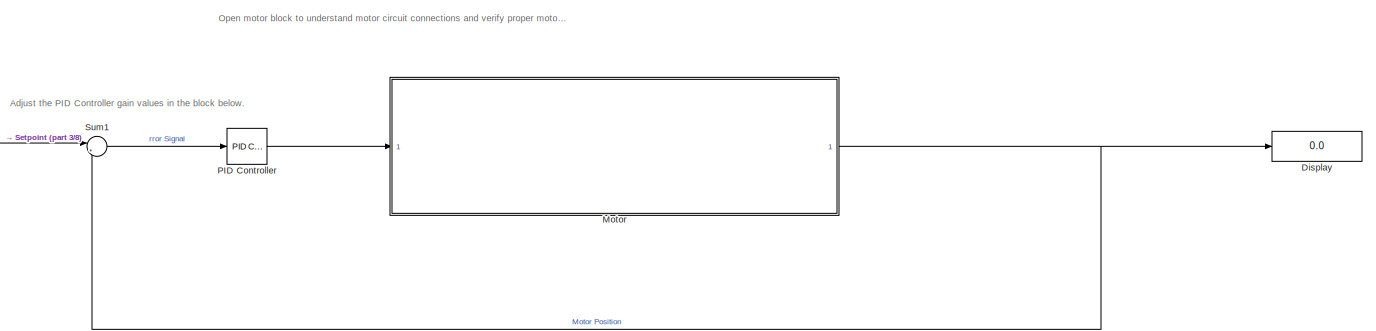
[diagram: root canvas - part 1/8, full width, top band]
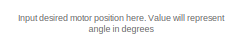
[diagram: root canvas - part 2/8, top left region]
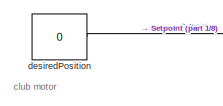
[diagram: root canvas - part 3/8, top left region]
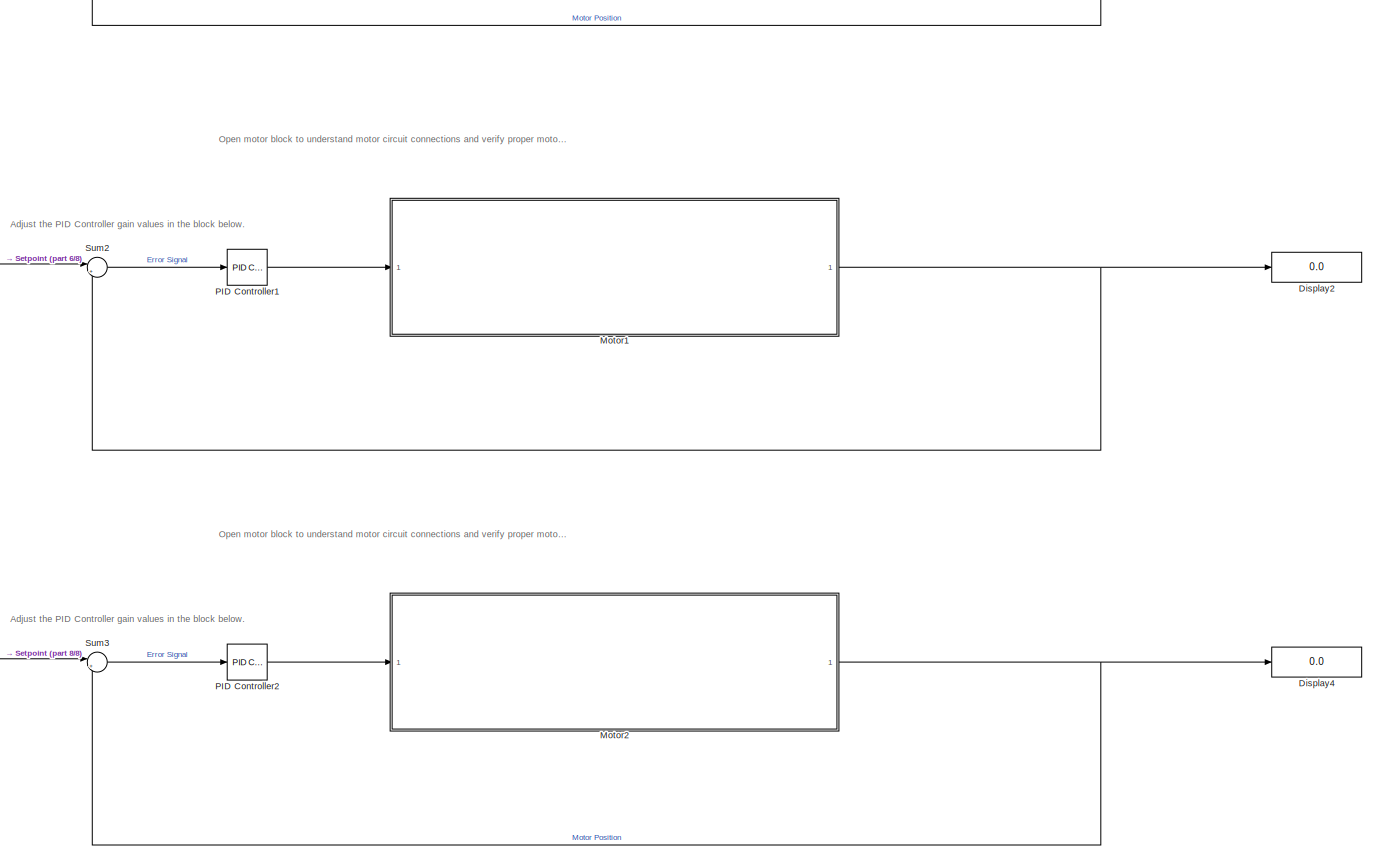
[diagram: root canvas - part 4/8, full width, middle band]
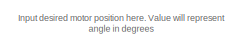
[diagram: root canvas - part 5/8, middle left region]
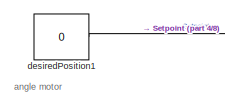
[diagram: root canvas - part 6/8, middle left region]
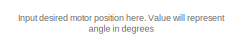
[diagram: root canvas - part 7/8, bottom left region]
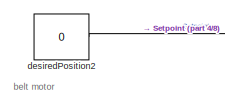
[diagram: root canvas - part 8/8, bottom left region]
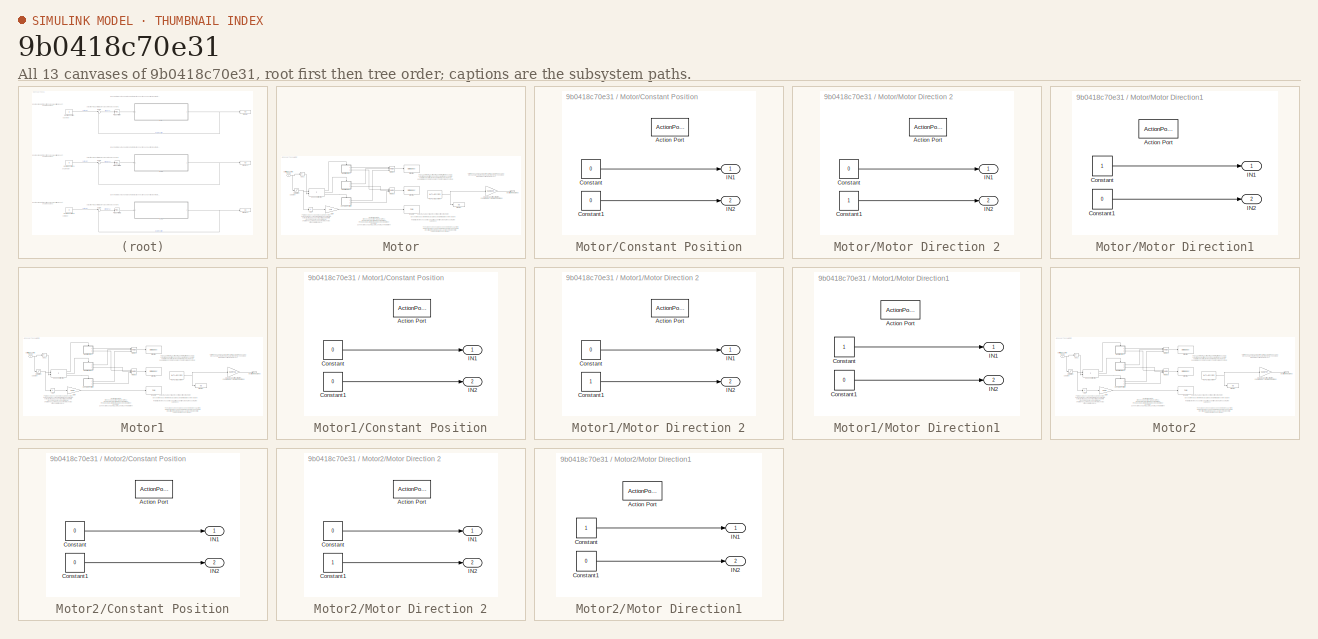
[diagram: thumbnail index - all 13 canvases of the model, root first then tree order]
MODEL slx_9b0418c70e31
KIND model
CONFIG AbsTol = auto
CONFIG EnableMultiTasking = on
CONFIG FixedStep = 0.001
CONFIG MaxStep = auto
CONFIG MinStep = auto
CONFIG RelTol = 1e-3
CONFIG SampleTimeConstraint = Unconstrained
CONFIG SolverName = FixedStepAuto
CONFIG StartTime = 0.0
CONFIG StopTime = 10000
WORKSPACE source: mxarray member
WORKSPACE Error = 0
WORKSPACE motorPosition: Simulink.Parameter (value not decoded)
BLOCK [Display] Display
  Decimation = 1
  Ports = [1]
BLOCK [Display] Display2
  Decimation = 1
  Ports = [1]
BLOCK [Display] Display4
  Decimation = 1
  Ports = [1]
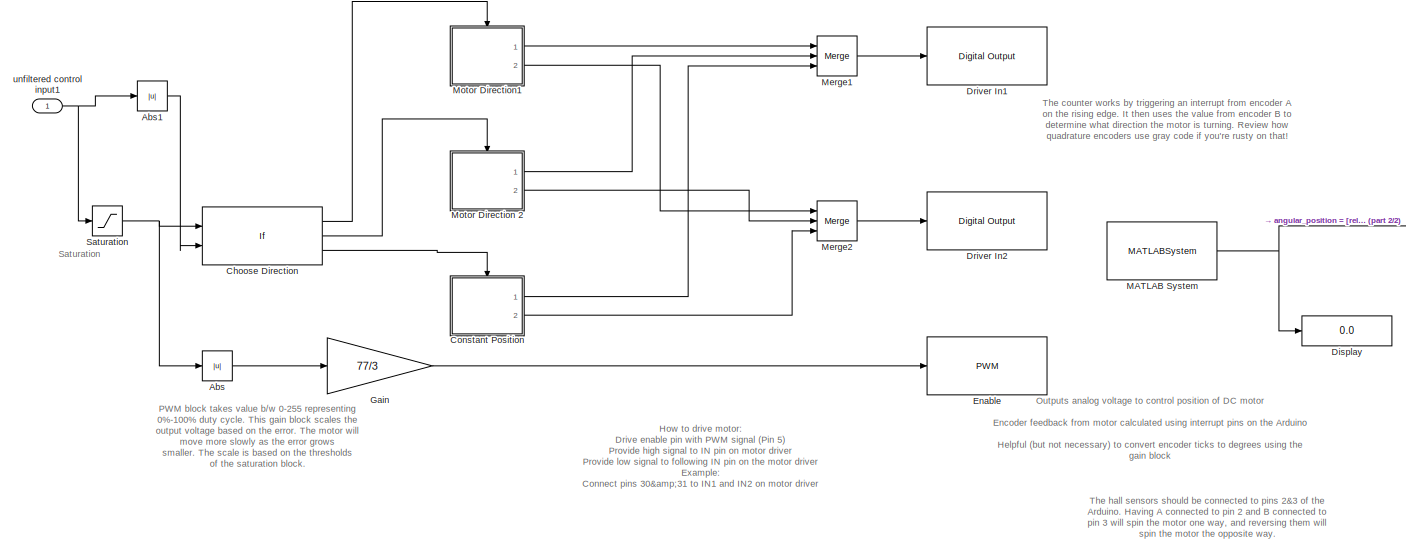
[diagram: Motor - part 1/2, most of the canvas]
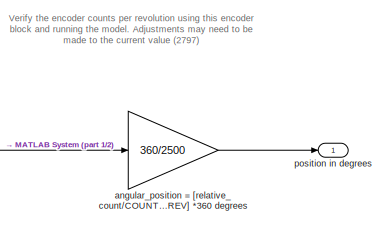
[diagram: Motor - part 2/2, middle right region]
BLOCK [SubSystem] Motor
  Ports = [1, 1]
  RequestExecContextInheritance = off
BLOCK [Abs] Motor/Abs
  SaturateOnIntegerOverflow = off
BLOCK [Abs] Motor/Abs1
  SaturateOnIntegerOverflow = off
BLOCK [If] Motor/Choose Direction
  ElseIfExpressions = u1 < 0 & u2 > 3
  IfExpression = u1 > 0 & u2 > 3
  NumInputs = 2
  Ports = [2, 3]
BLOCK [SubSystem] Motor/Constant Position
  Ports = [0, 2, 0, 0, 0, 0, 0, 1]
  RequestExecContextInheritance = off
  TreatAsAtomicUnit = on
BLOCK [ActionPort] Motor/Constant Position/Action Port
  ActionPortLabel = else
BLOCK [Constant] Motor/Constant Position/Constant
  Value = 0
BLOCK [Constant] Motor/Constant Position/Constant1
  Value = 0
BLOCK [Outport] Motor/Constant Position/IN1
BLOCK [Outport] Motor/Constant Position/IN2
  Port = 2
BLOCK [Display] Motor/Display
  Decimation = 1
  Ports = [1]
BLOCK [Reference] Motor/Driver In1  REF=arduinolib/Digital Output
  Ports = [1]
  SourceBlock = arduinolib/Digital Output
  SourceProductBaseCode = ARDUINO
  SourceType = Arduino Digital Output
BLOCK [Reference] Motor/Driver In2  REF=arduinolib/Digital Output
  Ports = [1]
  SourceBlock = arduinolib/Digital Output
  SourceProductBaseCode = ARDUINO
  SourceType = Arduino Digital Output
BLOCK [Reference] Motor/Enable  REF=arduinolib/PWM
  Ports = [1]
  SourceBlock = arduinolib/PWM
  SourceProductBaseCode = ARDUINO
  SourceType = Arduino PWM
BLOCK [Gain] Motor/Gain
  Gain = 77/3
BLOCK [MATLABSystem] Motor/MATLAB System
  Encoder = 0
  MaskDisplay = disp('Encoder');\nport_label('output',1,'y');
  MaskType = Encoder_arduino
  PinA = 2
  PinB = 3
  Ports = [0, 1]
  SampleTime = 0.001
  System = Encoder_arduino
BLOCK [Merge] Motor/Merge1
  Inputs = 3
  Ports = [3, 1]
BLOCK [Merge] Motor/Merge2
  Inputs = 3
  Ports = [3, 1]
BLOCK [SubSystem] Motor/Motor Direction 2
  Ports = [0, 2, 0, 0, 0, 0, 0, 1]
  RequestExecContextInheritance = off
  TreatAsAtomicUnit = on
BLOCK [ActionPort] Motor/Motor Direction 2/Action Port
  ActionPortLabel = elseif(u1 < 0 & u2 > 3)
BLOCK [Constant] Motor/Motor Direction 2/Constant
  Value = 0
BLOCK [Constant] Motor/Motor Direction 2/Constant1
BLOCK [Outport] Motor/Motor Direction 2/IN1
BLOCK [Outport] Motor/Motor Direction 2/IN2
  Port = 2
BLOCK [SubSystem] Motor/Motor Direction1
  Ports = [0, 2, 0, 0, 0, 0, 0, 1]
  RequestExecContextInheritance = off
  TreatAsAtomicUnit = on
BLOCK [ActionPort] Motor/Motor Direction1/Action Port
  ActionPortLabel = if(u1 > 0 & u2 > 3)
BLOCK [Constant] Motor/Motor Direction1/Constant
BLOCK [Constant] Motor/Motor Direction1/Constant1
  Value = 0
BLOCK [Outport] Motor/Motor Direction1/IN1
BLOCK [Outport] Motor/Motor Direction1/IN2
  Port = 2
BLOCK [Saturate] Motor/Saturation
  LowerLimit = -5
  UpperLimit = 5
BLOCK [Gain] Motor/angular_position = [relative_count//COUNTS_PER_REV] *360 degrees
  Gain = 360/2500
BLOCK [Outport] Motor/position in degrees
  VectorParamsAs1DForOutWhenUnconnected = off
BLOCK [Inport] Motor/unfiltered control input1
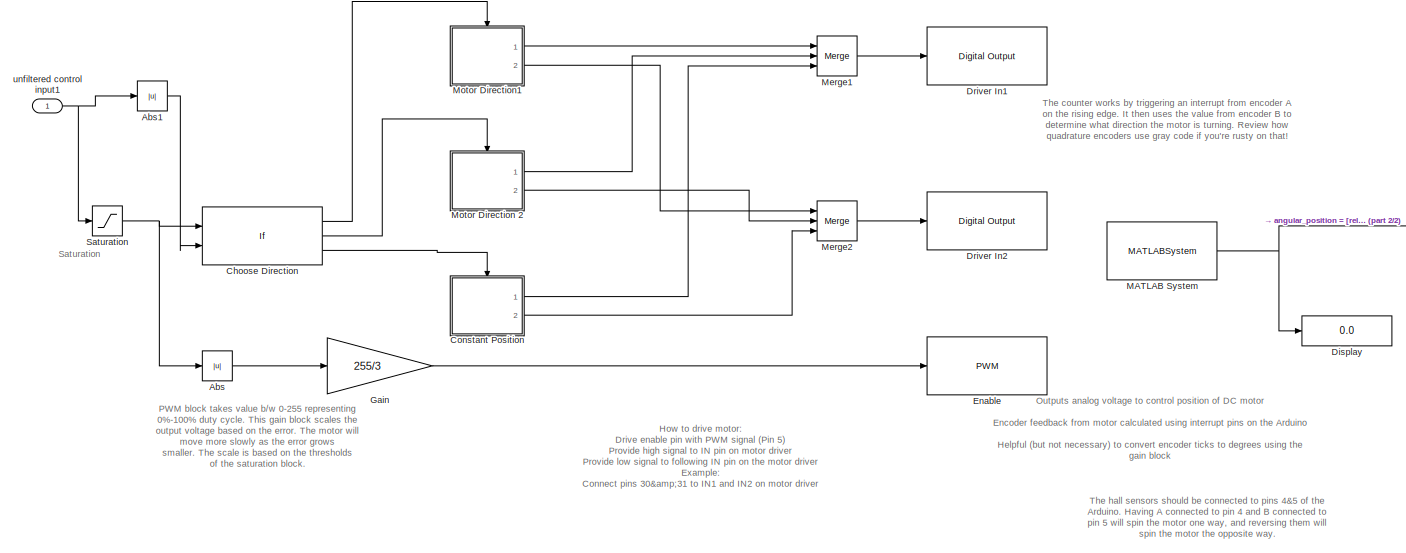
[diagram: Motor1 - part 1/2, most of the canvas]
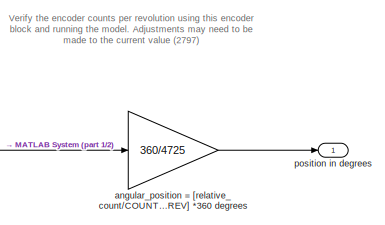
[diagram: Motor1 - part 2/2, middle right region]
BLOCK [SubSystem] Motor1
  Ports = [1, 1]
  RequestExecContextInheritance = off
BLOCK [Abs] Motor1/Abs
  SaturateOnIntegerOverflow = off
BLOCK [Abs] Motor1/Abs1
  SaturateOnIntegerOverflow = off
BLOCK [If] Motor1/Choose Direction
  ElseIfExpressions = u1 < 0 & u2 > 3
  IfExpression = u1 > 0 & u2 > 3
  NumInputs = 2
  Ports = [2, 3]
BLOCK [SubSystem] Motor1/Constant Position
  Ports = [0, 2, 0, 0, 0, 0, 0, 1]
  RequestExecContextInheritance = off
  TreatAsAtomicUnit = on
BLOCK [ActionPort] Motor1/Constant Position/Action Port
  ActionPortLabel = else
BLOCK [Constant] Motor1/Constant Position/Constant
  Value = 0
BLOCK [Constant] Motor1/Constant Position/Constant1
  Value = 0
BLOCK [Outport] Motor1/Constant Position/IN1
BLOCK [Outport] Motor1/Constant Position/IN2
  Port = 2
BLOCK [Display] Motor1/Display
  Decimation = 1
  Ports = [1]
BLOCK [Reference] Motor1/Driver In1  REF=arduinolib/Digital Output
  Ports = [1]
  SourceBlock = arduinolib/Digital Output
  SourceProductBaseCode = ARDUINO
  SourceType = Arduino Digital Output
BLOCK [Reference] Motor1/Driver In2  REF=arduinolib/Digital Output
  Ports = [1]
  SourceBlock = arduinolib/Digital Output
  SourceProductBaseCode = ARDUINO
  SourceType = Arduino Digital Output
BLOCK [Reference] Motor1/Enable  REF=arduinolib/PWM
  Ports = [1]
  SourceBlock = arduinolib/PWM
  SourceProductBaseCode = ARDUINO
  SourceType = Arduino PWM
BLOCK [Gain] Motor1/Gain
  Gain = 255/3
BLOCK [MATLABSystem] Motor1/MATLAB System
  Encoder = 1
  MaskDisplay = disp('Encoder');\nport_label('output',1,'y');
  MaskType = Encoder_arduino
  PinA = 18
  PinB = 19
  Ports = [0, 1]
  SampleTime = 0.001
  System = Encoder_arduino
BLOCK [Merge] Motor1/Merge1
  Inputs = 3
  Ports = [3, 1]
BLOCK [Merge] Motor1/Merge2
  Inputs = 3
  Ports = [3, 1]
BLOCK [SubSystem] Motor1/Motor Direction 2
  Ports = [0, 2, 0, 0, 0, 0, 0, 1]
  RequestExecContextInheritance = off
  TreatAsAtomicUnit = on
BLOCK [ActionPort] Motor1/Motor Direction 2/Action Port
  ActionPortLabel = elseif(u1 < 0 & u2 > 3)
BLOCK [Constant] Motor1/Motor Direction 2/Constant
  Value = 0
BLOCK [Constant] Motor1/Motor Direction 2/Constant1
BLOCK [Outport] Motor1/Motor Direction 2/IN1
BLOCK [Outport] Motor1/Motor Direction 2/IN2
  Port = 2
BLOCK [SubSystem] Motor1/Motor Direction1
  Ports = [0, 2, 0, 0, 0, 0, 0, 1]
  RequestExecContextInheritance = off
  TreatAsAtomicUnit = on
BLOCK [ActionPort] Motor1/Motor Direction1/Action Port
  ActionPortLabel = if(u1 > 0 & u2 > 3)
BLOCK [Constant] Motor1/Motor Direction1/Constant
BLOCK [Constant] Motor1/Motor Direction1/Constant1
  Value = 0
BLOCK [Outport] Motor1/Motor Direction1/IN1
BLOCK [Outport] Motor1/Motor Direction1/IN2
  Port = 2
BLOCK [Saturate] Motor1/Saturation
  LowerLimit = -5
  UpperLimit = 5
BLOCK [Gain] Motor1/angular_position = [relative_count//COUNTS_PER_REV] *360 degrees
  Gain = 360/4725
BLOCK [Outport] Motor1/position in degrees
  VectorParamsAs1DForOutWhenUnconnected = off
BLOCK [Inport] Motor1/unfiltered control input1
BLOCK [SubSystem] Motor2
  Ports = [1, 1]
  RequestExecContextInheritance = off
BLOCK [Abs] Motor2/Abs
  SaturateOnIntegerOverflow = off
BLOCK [Abs] Motor2/Abs1
  SaturateOnIntegerOverflow = off
BLOCK [If] Motor2/Choose Direction
  ElseIfExpressions = u1 < 0 & u2 > 3
  IfExpression = u1 > 0 & u2 > 3
  NumInputs = 2
  Ports = [2, 3]
BLOCK [SubSystem] Motor2/Constant Position
  Ports = [0, 2, 0, 0, 0, 0, 0, 1]
  RequestExecContextInheritance = off
  TreatAsAtomicUnit = on
BLOCK [ActionPort] Motor2/Constant Position/Action Port
  ActionPortLabel = else
BLOCK [Constant] Motor2/Constant Position/Constant
  Value = 0
BLOCK [Constant] Motor2/Constant Position/Constant1
  Value = 0
BLOCK [Outport] Motor2/Constant Position/IN1
BLOCK [Outport] Motor2/Constant Position/IN2
  Port = 2
BLOCK [Display] Motor2/Display
  Decimation = 1
  Ports = [1]
BLOCK [Reference] Motor2/Driver In1  REF=arduinolib/Digital Output
  Ports = [1]
  SourceBlock = arduinolib/Digital Output
  SourceProductBaseCode = ARDUINO
  SourceType = Arduino Digital Output
BLOCK [Reference] Motor2/Driver In2  REF=arduinolib/Digital Output
  Ports = [1]
  SourceBlock = arduinolib/Digital Output
  SourceProductBaseCode = ARDUINO
  SourceType = Arduino Digital Output
BLOCK [Reference] Motor2/Enable  REF=arduinolib/PWM
  Ports = [1]
  SourceBlock = arduinolib/PWM
  SourceProductBaseCode = ARDUINO
  SourceType = Arduino PWM
BLOCK [Gain] Motor2/Gain
  Gain = 255/3
BLOCK [MATLABSystem] Motor2/MATLAB System
  Encoder = 2
  MaskDisplay = disp('Encoder');\nport_label('output',1,'y');
  MaskType = Encoder_arduino
  PinA = 20
  PinB = 21
  Ports = [0, 1]
  SampleTime = 0.001
  System = Encoder_arduino
BLOCK [Merge] Motor2/Merge1
  Inputs = 3
  Ports = [3, 1]
BLOCK [Merge] Motor2/Merge2
  Inputs = 3
  Ports = [3, 1]
BLOCK [SubSystem] Motor2/Motor Direction 2
  Ports = [0, 2, 0, 0, 0, 0, 0, 1]
  RequestExecContextInheritance = off
  TreatAsAtomicUnit = on
BLOCK [ActionPort] Motor2/Motor Direction 2/Action Port
  ActionPortLabel = elseif(u1 < 0 & u2 > 3)
BLOCK [Constant] Motor2/Motor Direction 2/Constant
  Value = 0
BLOCK [Constant] Motor2/Motor Direction 2/Constant1
BLOCK [Outport] Motor2/Motor Direction 2/IN1
BLOCK [Outport] Motor2/Motor Direction 2/IN2
  Port = 2
BLOCK [SubSystem] Motor2/Motor Direction1
  Ports = [0, 2, 0, 0, 0, 0, 0, 1]
  RequestExecContextInheritance = off
  TreatAsAtomicUnit = on
BLOCK [ActionPort] Motor2/Motor Direction1/Action Port
  ActionPortLabel = if(u1 > 0 & u2 > 3)
BLOCK [Constant] Motor2/Motor Direction1/Constant
BLOCK [Constant] Motor2/Motor Direction1/Constant1
  Value = 0
BLOCK [Outport] Motor2/Motor Direction1/IN1
BLOCK [Outport] Motor2/Motor Direction1/IN2
  Port = 2
BLOCK [Saturate] Motor2/Saturation
  LowerLimit = -5
  UpperLimit = 5
BLOCK [Gain] Motor2/angular_position = [relative_count//COUNTS_PER_REV] *360 degrees
  Gain = 360/2797
BLOCK [Outport] Motor2/position in degrees
  VectorParamsAs1DForOutWhenUnconnected = off
BLOCK [Inport] Motor2/unfiltered control input1
BLOCK [Reference] PID Controller  REF=slpidlib/PID Controller
  Ports = [1, 1]
  SourceBlock = slpidlib/PID Controller
  SourceProductBaseCode = SL
  SourceType = PID 1dof
BLOCK [Reference] PID Controller1  REF=slpidlib/PID Controller
  Ports = [1, 1]
  SourceBlock = slpidlib/PID Controller
  SourceProductBaseCode = SL
  SourceType = PID 1dof
BLOCK [Reference] PID Controller2  REF=slpidlib/PID Controller
  Ports = [1, 1]
  SourceBlock = slpidlib/PID Controller
  SourceProductBaseCode = SL
  SourceType = PID 1dof
BLOCK [Sum] Sum1
  Inputs = |+-
  Ports = [2, 1]
BLOCK [Sum] Sum2
  Inputs = |+-
  Ports = [2, 1]
BLOCK [Sum] Sum3
  Inputs = |+-
  Ports = [2, 1]
BLOCK [Constant] desiredPosition
  Value = 0
BLOCK [Constant] desiredPosition1
  Value = 0
BLOCK [Constant] desiredPosition2
  Value = 0
ANNOTATION (root): Input desired motor position here. Value will represent angle in degrees
ANNOTATION (root): Open motor block to understand motor circuit connections and verify proper motor encoder functionality.
ANNOTATION (root): Adjust the PID Controller gain values in the block below.
ANNOTATION (root): angle motor
ANNOTATION (root): belt motor
ANNOTATION (root): club motor
ANNOTATION Motor: PWM block takes value b/w 0-255 representing 0%-100% duty cycle. This gain block scales the output voltage based on the error. The motor will move more slowly as the error grows smaller. The scale is based on the thresholds of the saturation block.
ANNOTATION Motor: How to drive motor: Drive enable pin with PWM signal (Pin 5) Provide high signal to IN pin on motor driver Provide low signal to following IN pin on the motor driver Example: Connect pins 30&31 to IN1 and IN2 on motor driver Driving pin 30 high and pin 31 low will cause the motor to spin one direction Reversing pins 30 and 31 will cause the motor to spin the other direction
ANNOTATION Motor: Verify the encoder counts per revolution using this encoder block and running the model. Adjustments may need to be made to the current value (2797)
ANNOTATION Motor: Outputs analog voltage to control position of DC motor Encoder feedback from motor calculated using interrupt pins on the Arduino Helpful (but not necessary) to convert encoder ticks to degrees using the gain block
ANNOTATION Motor: Saturation
ANNOTATION Motor: The counter works by triggering an interrupt from encoder A on the rising edge. It then uses the value from encoder B to determine what direction the motor is turning. Review how quadrature encoders use gray code if you're rusty on that!
ANNOTATION Motor: The hall sensors should be connected to pins 2&3 of the Arduino. Having A connected to pin 2 and B connected to pin 3 will spin the motor one way, and reversing them will spin the motor the opposite way.
ANNOTATION Motor1: PWM block takes value b/w 0-255 representing 0%-100% duty cycle. This gain block scales the output voltage based on the error. The motor will move more slowly as the error grows smaller. The scale is based on the thresholds of the saturation block.
ANNOTATION Motor1: How to drive motor: Drive enable pin with PWM signal (Pin 5) Provide high signal to IN pin on motor driver Provide low signal to following IN pin on the motor driver Example: Connect pins 30&31 to IN1 and IN2 on motor driver Driving pin 30 high and pin 31 low will cause the motor to spin one direction Reversing pins 30 and 31 will cause the motor to spin the other direction
ANNOTATION Motor1: Verify the encoder counts per revolution using this encoder block and running the model. Adjustments may need to be made to the current value (2797)
ANNOTATION Motor1: Outputs analog voltage to control position of DC motor Encoder feedback from motor calculated using interrupt pins on the Arduino Helpful (but not necessary) to convert encoder ticks to degrees using the gain block
ANNOTATION Motor1: Saturation
ANNOTATION Motor1: The counter works by triggering an interrupt from encoder A on the rising edge. It then uses the value from encoder B to determine what direction the motor is turning. Review how quadrature encoders use gray code if you're rusty on that!
ANNOTATION Motor1: The hall sensors should be connected to pins 4&5 of the Arduino. Having A connected to pin 4 and B connected to pin 5 will spin the motor one way, and reversing them will spin the motor the opposite way.
ANNOTATION Motor2: PWM block takes value b/w 0-255 representing 0%-100% duty cycle. This gain block scales the output voltage based on the error. The motor will move more slowly as the error grows smaller. The scale is based on the thresholds of the saturation block.
ANNOTATION Motor2: How to drive motor: Drive enable pin with PWM signal (Pin 5) Provide high signal to IN pin on motor driver Provide low signal to following IN pin on the motor driver Example: Connect pins 30&31 to IN1 and IN2 on motor driver Driving pin 30 high and pin 31 low will cause the motor to spin one direction Reversing pins 30 and 31 will cause the motor to spin the other direction
ANNOTATION Motor2: Verify the encoder counts per revolution using this encoder block and running the model. Adjustments may need to be made to the current value (2797)
ANNOTATION Motor2: Outputs analog voltage to control position of DC motor Encoder feedback from motor calculated using interrupt pins on the Arduino Helpful (but not necessary) to convert encoder ticks to degrees using the gain block
ANNOTATION Motor2: Saturation
ANNOTATION Motor2: The counter works by triggering an interrupt from encoder A on the rising edge. It then uses the value from encoder B to determine what direction the motor is turning. Review how quadrature encoders use gray code if you're rusty on that!
ANNOTATION Motor2: The hall sensors should be connected to pins 6&7 of the Arduino. Having A connected to pin 6 and B connected to pin 7 will spin the motor one way, and reversing them will spin the motor the opposite way.
LINE Motor/Abs1:1 -> Motor/Choose Direction:2
LINE Motor/Abs:1 -> Motor/Gain:1
LINE Motor/Choose Direction:1 -> Motor/Motor Direction1:ifaction
LINE Motor/Choose Direction:2 -> Motor/Motor Direction 2:ifaction
LINE Motor/Choose Direction:3 -> Motor/Constant Position:ifaction
LINE Motor/Constant Position/Constant1:1 -> Motor/Constant Position/IN2:1
LINE Motor/Constant Position/Constant:1 -> Motor/Constant Position/IN1:1
LINE Motor/Constant Position:1 -> Motor/Merge1:3
LINE Motor/Constant Position:2 -> Motor/Merge2:3
LINE Motor/Gain:1 -> Motor/Enable:1
NET Motor/MATLAB System:1 -> Motor/Display:1, Motor/angular_position = [relative_count//COUNTS_PER_REV] *360 degrees:1
LINE Motor/Merge1:1 -> Motor/Driver In1:1
LINE Motor/Merge2:1 -> Motor/Driver In2:1
LINE Motor/Motor Direction 2/Constant1:1 -> Motor/Motor Direction 2/IN2:1
LINE Motor/Motor Direction 2/Constant:1 -> Motor/Motor Direction 2/IN1:1
LINE Motor/Motor Direction 2:1 -> Motor/Merge1:2
LINE Motor/Motor Direction 2:2 -> Motor/Merge2:2
LINE Motor/Motor Direction1/Constant1:1 -> Motor/Motor Direction1/IN2:1
LINE Motor/Motor Direction1/Constant:1 -> Motor/Motor Direction1/IN1:1
LINE Motor/Motor Direction1:1 -> Motor/Merge1:1
LINE Motor/Motor Direction1:2 -> Motor/Merge2:1
NET Motor/Saturation:1 -> Motor/Abs:1, Motor/Choose Direction:1
LINE Motor/angular_position = [relative_count//COUNTS_PER_REV] *360 degrees:1 -> Motor/position in degrees:1
NET Motor/unfiltered control input1:1 -> Motor/Abs1:1, Motor/Saturation:1
LINE Motor1/Abs1:1 -> Motor1/Choose Direction:2
LINE Motor1/Abs:1 -> Motor1/Gain:1
LINE Motor1/Choose Direction:1 -> Motor1/Motor Direction1:ifaction
LINE Motor1/Choose Direction:2 -> Motor1/Motor Direction 2:ifaction
LINE Motor1/Choose Direction:3 -> Motor1/Constant Position:ifaction
LINE Motor1/Constant Position/Constant1:1 -> Motor1/Constant Position/IN2:1
LINE Motor1/Constant Position/Constant:1 -> Motor1/Constant Position/IN1:1
LINE Motor1/Constant Position:1 -> Motor1/Merge1:3
LINE Motor1/Constant Position:2 -> Motor1/Merge2:3
LINE Motor1/Gain:1 -> Motor1/Enable:1
NET Motor1/MATLAB System:1 -> Motor1/Display:1, Motor1/angular_position = [relative_count//COUNTS_PER_REV] *360 degrees:1
LINE Motor1/Merge1:1 -> Motor1/Driver In1:1
LINE Motor1/Merge2:1 -> Motor1/Driver In2:1
LINE Motor1/Motor Direction 2/Constant1:1 -> Motor1/Motor Direction 2/IN2:1
LINE Motor1/Motor Direction 2/Constant:1 -> Motor1/Motor Direction 2/IN1:1
LINE Motor1/Motor Direction 2:1 -> Motor1/Merge1:2
LINE Motor1/Motor Direction 2:2 -> Motor1/Merge2:2
LINE Motor1/Motor Direction1/Constant1:1 -> Motor1/Motor Direction1/IN2:1
LINE Motor1/Motor Direction1/Constant:1 -> Motor1/Motor Direction1/IN1:1
LINE Motor1/Motor Direction1:1 -> Motor1/Merge1:1
LINE Motor1/Motor Direction1:2 -> Motor1/Merge2:1
NET Motor1/Saturation:1 -> Motor1/Abs:1, Motor1/Choose Direction:1
LINE Motor1/angular_position = [relative_count//COUNTS_PER_REV] *360 degrees:1 -> Motor1/position in degrees:1
NET Motor1/unfiltered control input1:1 -> Motor1/Abs1:1, Motor1/Saturation:1
NET Motor1:1 -> Display2:1, Sum2:2
LINE Motor2/Abs1:1 -> Motor2/Choose Direction:2
LINE Motor2/Abs:1 -> Motor2/Gain:1
LINE Motor2/Choose Direction:1 -> Motor2/Motor Direction1:ifaction
LINE Motor2/Choose Direction:2 -> Motor2/Motor Direction 2:ifaction
LINE Motor2/Choose Direction:3 -> Motor2/Constant Position:ifaction
LINE Motor2/Constant Position/Constant1:1 -> Motor2/Constant Position/IN2:1
LINE Motor2/Constant Position/Constant:1 -> Motor2/Constant Position/IN1:1
LINE Motor2/Constant Position:1 -> Motor2/Merge1:3
LINE Motor2/Constant Position:2 -> Motor2/Merge2:3
LINE Motor2/Gain:1 -> Motor2/Enable:1
NET Motor2/MATLAB System:1 -> Motor2/Display:1, Motor2/angular_position = [relative_count//COUNTS_PER_REV] *360 degrees:1
LINE Motor2/Merge1:1 -> Motor2/Driver In1:1
LINE Motor2/Merge2:1 -> Motor2/Driver In2:1
LINE Motor2/Motor Direction 2/Constant1:1 -> Motor2/Motor Direction 2/IN2:1
LINE Motor2/Motor Direction 2/Constant:1 -> Motor2/Motor Direction 2/IN1:1
LINE Motor2/Motor Direction 2:1 -> Motor2/Merge1:2
LINE Motor2/Motor Direction 2:2 -> Motor2/Merge2:2
LINE Motor2/Motor Direction1/Constant1:1 -> Motor2/Motor Direction1/IN2:1
LINE Motor2/Motor Direction1/Constant:1 -> Motor2/Motor Direction1/IN1:1
LINE Motor2/Motor Direction1:1 -> Motor2/Merge1:1
LINE Motor2/Motor Direction1:2 -> Motor2/Merge2:1
NET Motor2/Saturation:1 -> Motor2/Abs:1, Motor2/Choose Direction:1
LINE Motor2/angular_position = [relative_count//COUNTS_PER_REV] *360 degrees:1 -> Motor2/position in degrees:1
NET Motor2/unfiltered control input1:1 -> Motor2/Abs1:1, Motor2/Saturation:1
NET Motor2:1 -> Display4:1, Sum3:2
NET Motor:1 -> Display:1, Sum1:2
LINE PID Controller1:1 -> Motor1:1
LINE PID Controller2:1 -> Motor2:1
LINE PID Controller:1 -> Motor:1
LINE Sum1:1 -> PID Controller:1
LINE Sum2:1 -> PID Controller1:1
LINE Sum3:1 -> PID Controller2:1
LINE desiredPosition1:1 -> Sum2:1
LINE desiredPosition2:1 -> Sum3:1
LINE desiredPosition:1 -> Sum1:1
note: NET lines group one-source signal fan-out (src -> all destinations, sorted); 1:1 wires keep LINE
